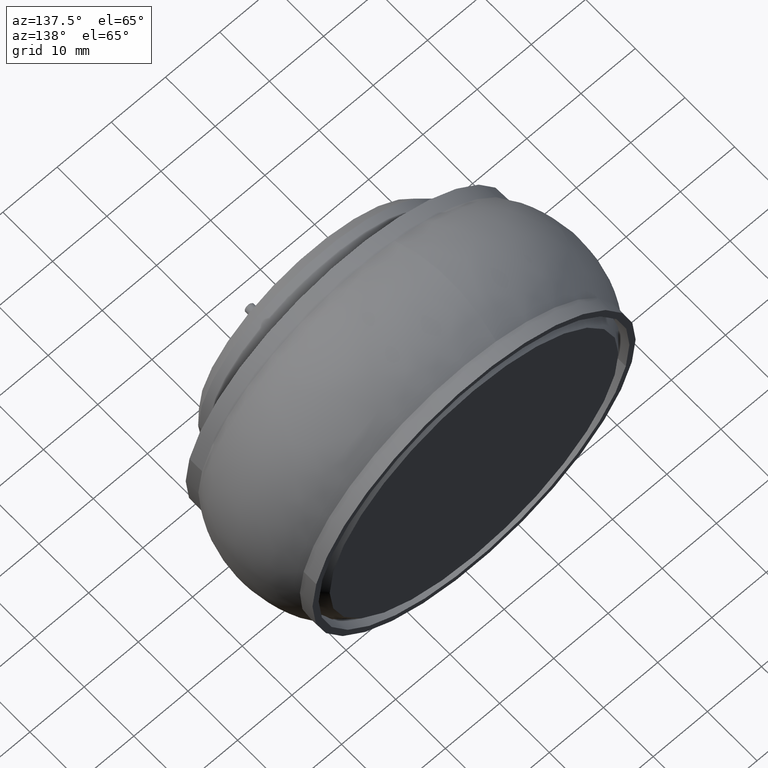
[diagram: clean part render]
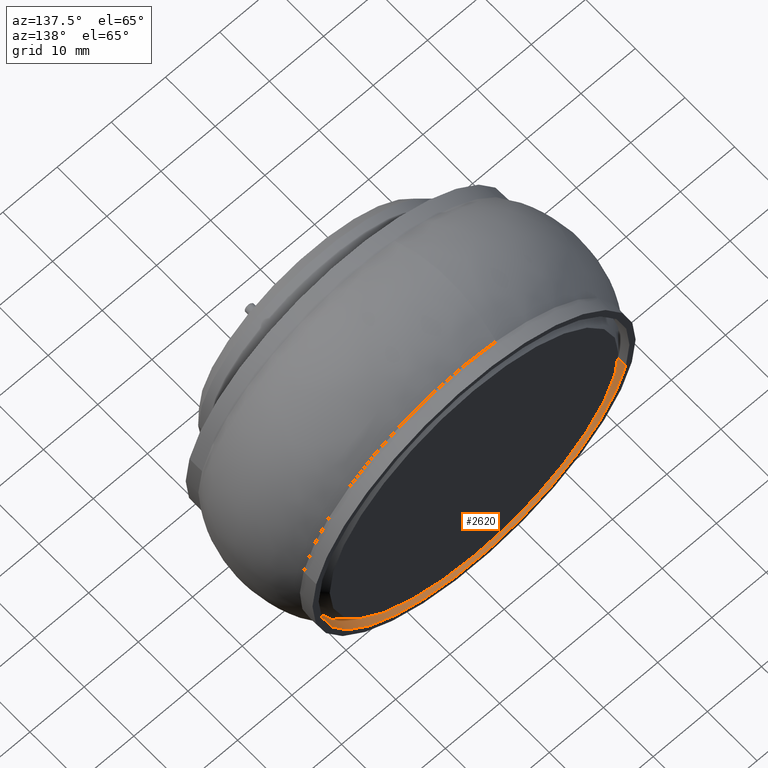
[diagram: same view with one face highlighted and labeled with its STEP entity id]
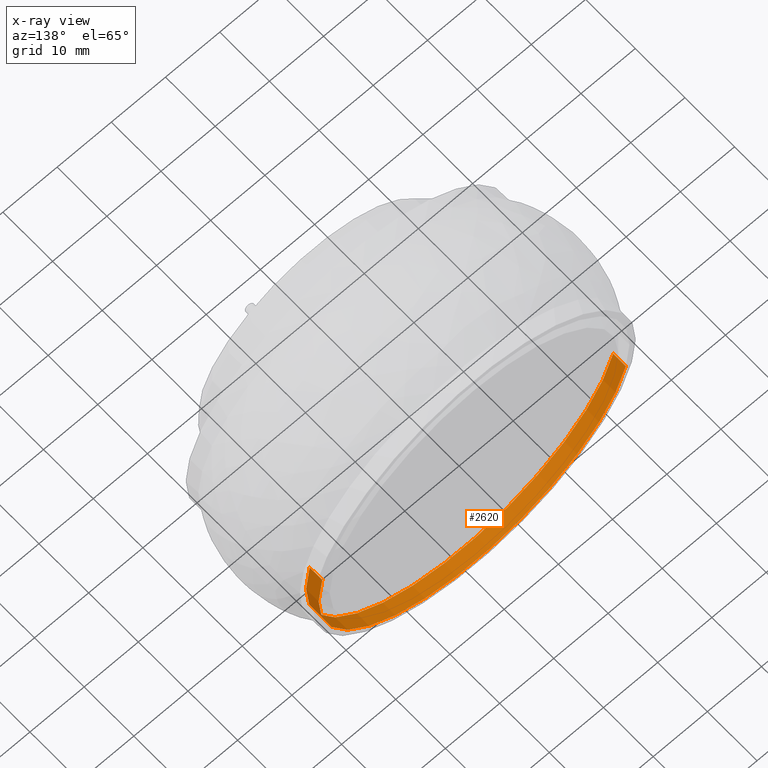
[diagram: x-ray of the same camera — body ghosted, the highlighted face saturated]
A machine part, auxiliary view. The second image highlights one B-rep face of the part: STEP entity #2620.
The next image is the same camera in x-ray: the body ghosted, the highlighted face saturated — about 0% of this face is hidden behind the body in this view.
In plain terms, the highlighted cylindrical surface (partial cylindrical patch) has radius 28.6675 mm, axis along (0, -1, -0).
Its self-contained STEP definition (entity closure, byte-faithful):
#739 = CIRCLE ( 'NONE', #10967, 1.128640772573400000 ) ;
#836 = CARTESIAN_POINT ( 'NONE',  ( -1.969096572257701700E-016, 0.5489973087788044800, -2.456348010631317000E-016 ) ) ;
#1933 = VECTOR ( 'NONE', #11792, 39.37007874015748100 ) ;
#2388 = VERTEX_POINT ( 'NONE', #10521 ) ;
#2620 = ADVANCED_FACE ( 'NONE', ( #15062 ), #14867, .F. ) ;
#2896 = DIRECTION ( 'NONE',  ( 0.9766289261794597300, 0.0000000000000000000, 0.2149324092582486900 ) ) ;
#3984 = CARTESIAN_POINT ( 'NONE',  ( -1.102263225760715900, 0.4489973087788044500, -0.2425814804362922100 ) ) ;
#4185 = VERTEX_POINT ( 'NONE', #4323 ) ;
#4323 = CARTESIAN_POINT ( 'NONE',  ( 1.102263225760715400, 0.4489973087788044500, 0.2425814804362917700 ) ) ;
#4349 = CARTESIAN_POINT ( 'NONE',  ( -1.102263225760715700, 0.5489973087788044800, -0.2425814804362921300 ) ) ;
#4934 = VECTOR ( 'NONE', #10815, 39.37007874015748100 ) ;
#5651 = CARTESIAN_POINT ( 'NONE',  ( 1.102263225760715400, 0.5489973087788044800, 0.2425814804362917700 ) ) ;
#6010 = LINE ( 'NONE', #4349, #1933 ) ;
#6020 = EDGE_CURVE ( 'NONE', #2388, #7035, #739, .T. ) ;
#6164 = AXIS2_PLACEMENT_3D ( 'NONE', #12743, #15158, #2896 ) ;
#6297 = CARTESIAN_POINT ( 'NONE',  ( -1.969096572257701700E-016, 0.5489973087788044800, -2.456348010631317000E-016 ) ) ;
#7035 = VERTEX_POINT ( 'NONE', #8481 ) ;
#7291 = EDGE_CURVE ( 'NONE', #7035, #4185, #13616, .T. ) ;
#7461 = DIRECTION ( 'NONE',  ( 1.096332265837262400E-018, -1.000000000000000000, -7.940918782560247300E-019 ) ) ;
#7630 = ORIENTED_EDGE ( 'NONE', *, *, #11452, .T. ) ;
#7870 = AXIS2_PLACEMENT_3D ( 'NONE', #836, #14331, #11922 ) ;
#8481 = CARTESIAN_POINT ( 'NONE',  ( 1.102263225760715400, 0.5489973087788044800, 0.2425814804362917700 ) ) ;
#8841 = VERTEX_POINT ( 'NONE', #3984 ) ;
#8848 = EDGE_CURVE ( 'NONE', #8841, #4185, #14748, .T. ) ;
#10521 = CARTESIAN_POINT ( 'NONE',  ( -1.102263225760715900, 0.5489973087788044800, -0.2425814804362922100 ) ) ;
#10815 = DIRECTION ( 'NONE',  ( 1.096332265837262400E-018, -1.000000000000000000, -7.940918782560247300E-019 ) ) ;
#10967 = AXIS2_PLACEMENT_3D ( 'NONE', #6297, #7461, #12436 ) ;
#11452 = EDGE_CURVE ( 'NONE', #2388, #8841, #6010, .T. ) ;
#11792 = DIRECTION ( 'NONE',  ( 1.096332265837262400E-018, -1.000000000000000000, -7.940918782560247300E-019 ) ) ;
#11922 = DIRECTION ( 'NONE',  ( 0.9766289261794597300, 0.0000000000000000000, 0.2149324092582486900 ) ) ;
#12436 = DIRECTION ( 'NONE',  ( 0.9766289261794597300, 0.0000000000000000000, 0.2149324092582486900 ) ) ;
#12743 = CARTESIAN_POINT ( 'NONE',  ( -1.968000239991864500E-016, 0.4489973087788044500, -2.457142102509573000E-016 ) ) ;
#13080 = ORIENTED_EDGE ( 'NONE', *, *, #6020, .F. ) ;
#13616 = LINE ( 'NONE', #5651, #4934 ) ;
#14331 = DIRECTION ( 'NONE',  ( 1.096332265837262400E-018, -1.000000000000000000, -7.940918782560247300E-019 ) ) ;
#14748 = CIRCLE ( 'NONE', #6164, 1.128640772573400000 ) ;
#14867 = CYLINDRICAL_SURFACE ( 'NONE', #7870, 1.128640772573400000 ) ;
#15062 = FACE_OUTER_BOUND ( 'NONE', #15450, .T. ) ;
#15158 = DIRECTION ( 'NONE',  ( 1.096332265837262400E-018, -1.000000000000000000, -7.940918782560247300E-019 ) ) ;
#15360 = ORIENTED_EDGE ( 'NONE', *, *, #8848, .T. ) ;
#15450 = EDGE_LOOP ( 'NONE', ( #13080, #7630, #15360, #16086 ) ) ;
#16086 = ORIENTED_EDGE ( 'NONE', *, *, #7291, .F. ) ;